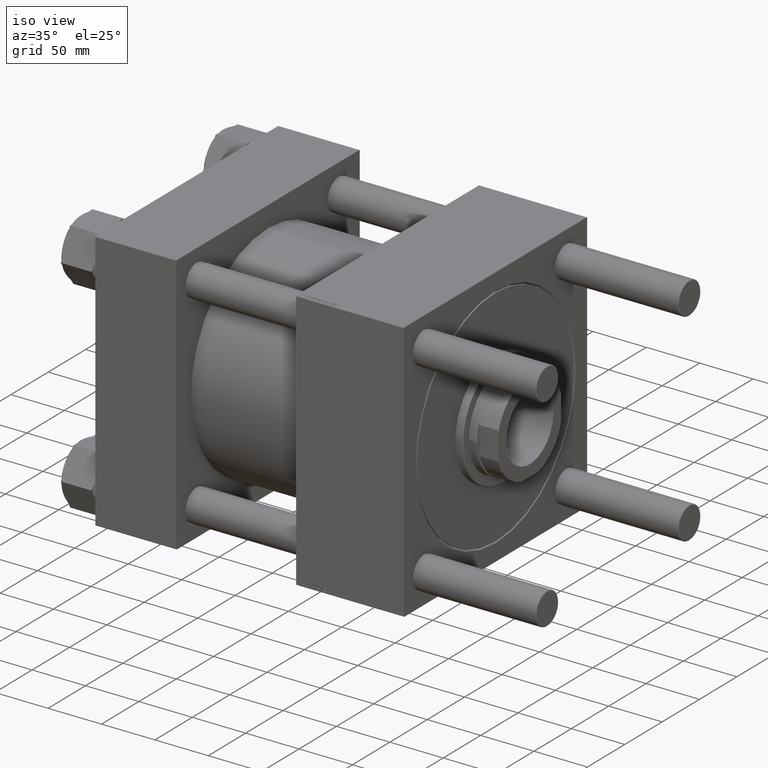
[diagram: clean part render]
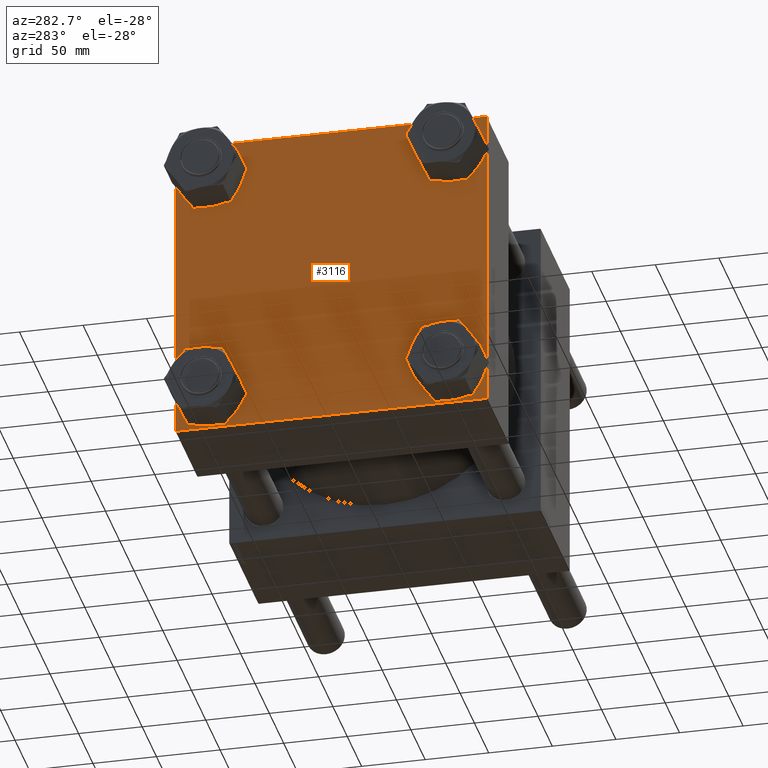
[diagram: tour spotlight — one face highlighted and labeled with its STEP entity id]
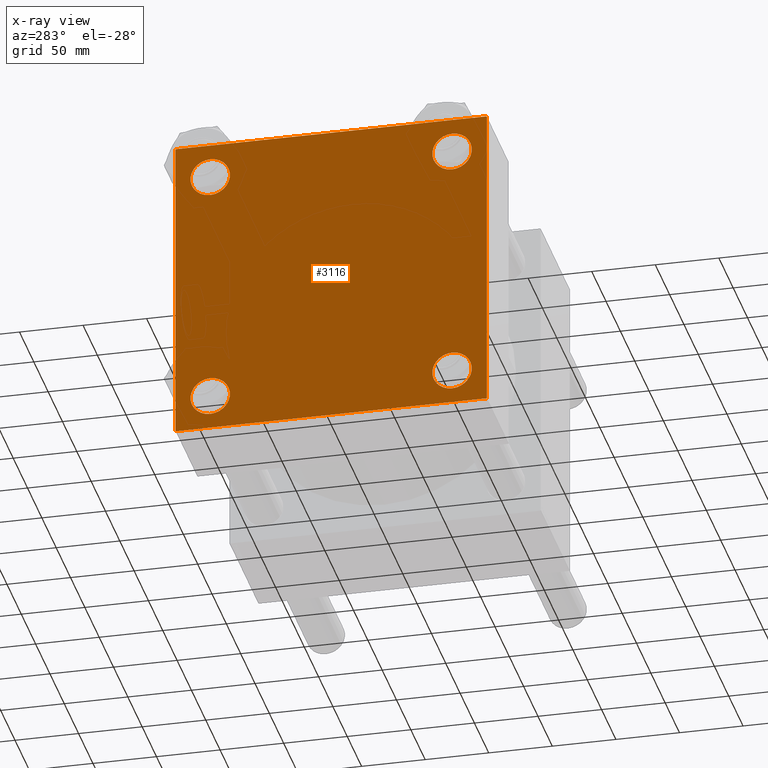
[diagram: x-ray of the same camera — body ghosted, this tour face saturated]
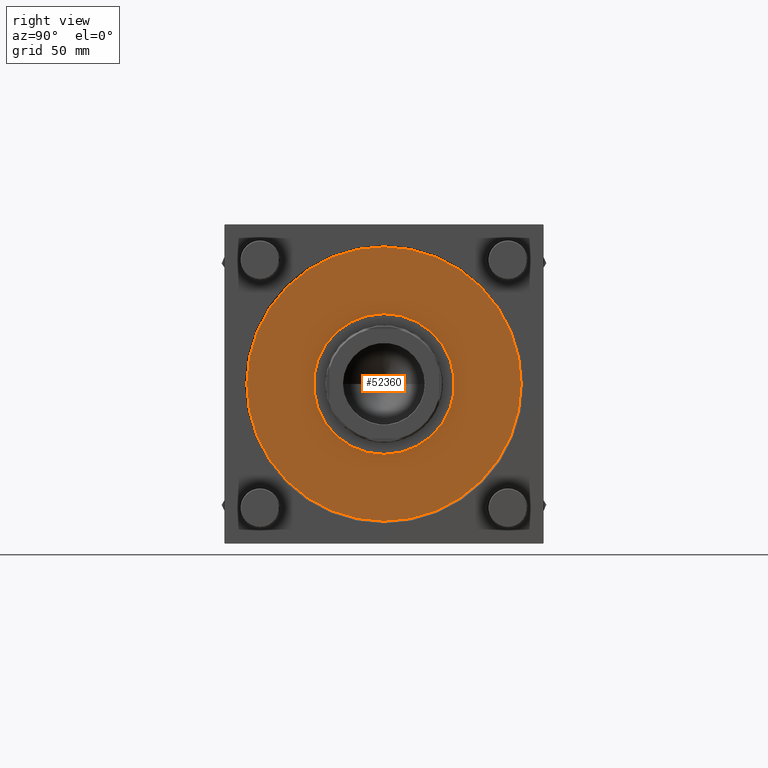
[diagram: tour spotlight — one face highlighted and labeled with its STEP entity id]
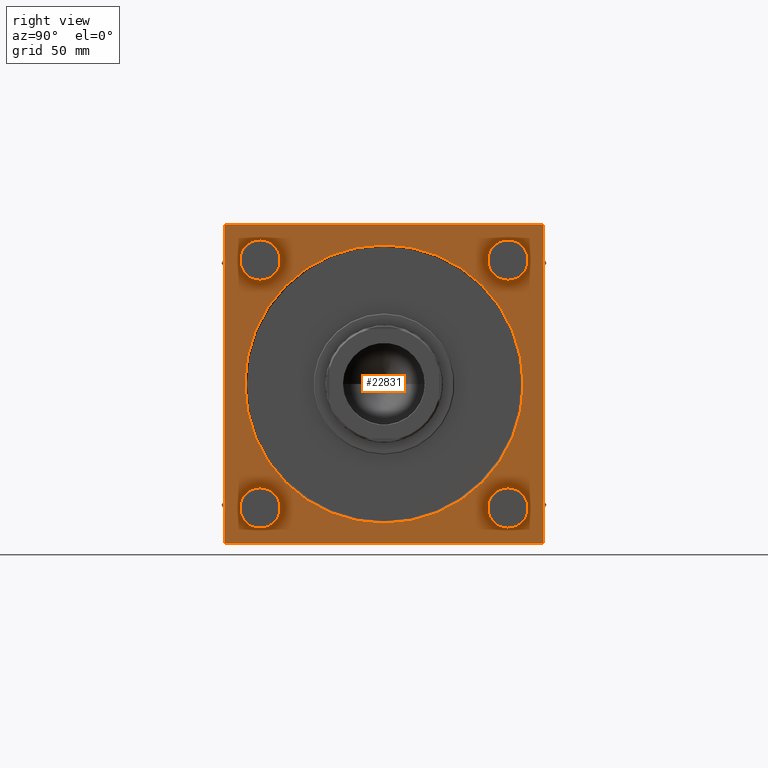
[diagram: tour spotlight — one face highlighted and labeled with its STEP entity id]
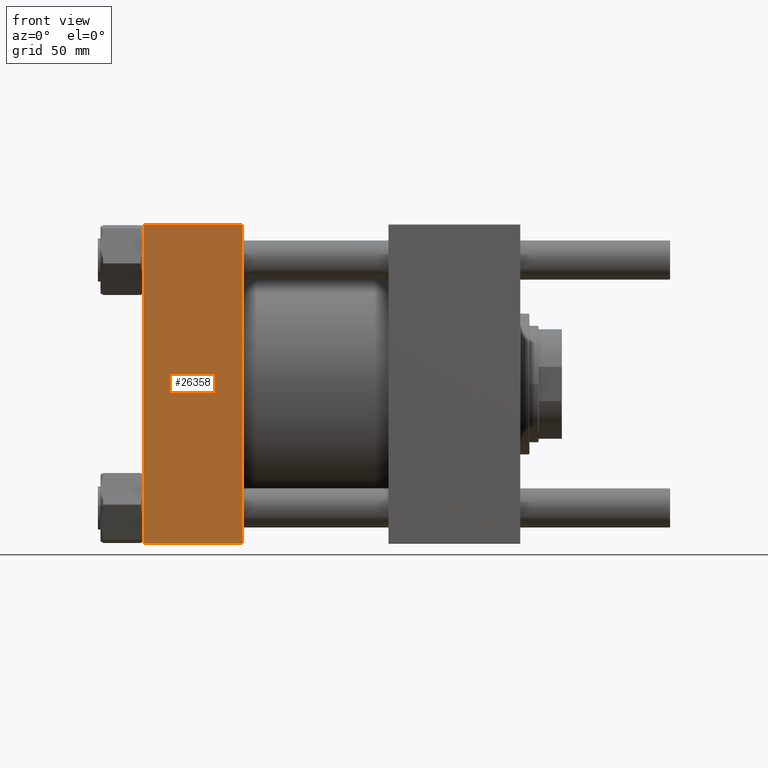
[diagram: tour spotlight — one face highlighted and labeled with its STEP entity id]
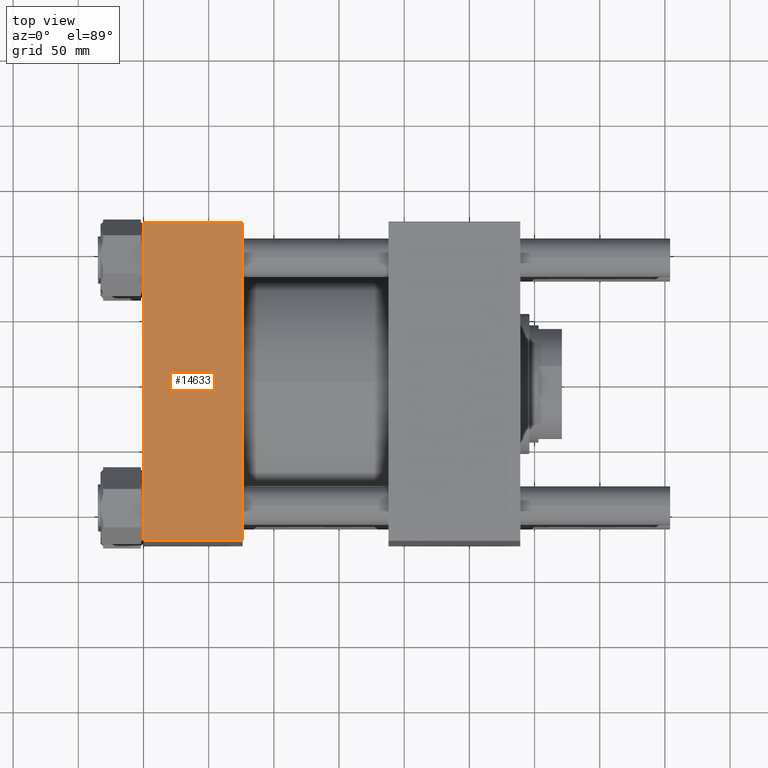
[diagram: tour spotlight — one face highlighted and labeled with its STEP entity id]
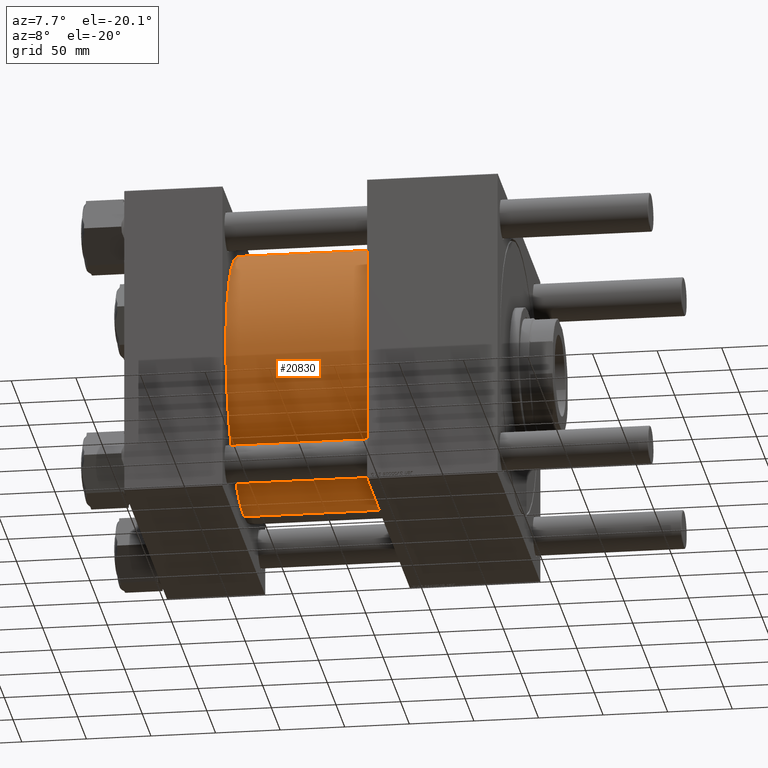
[diagram: tour spotlight — one face highlighted and labeled with its STEP entity id]
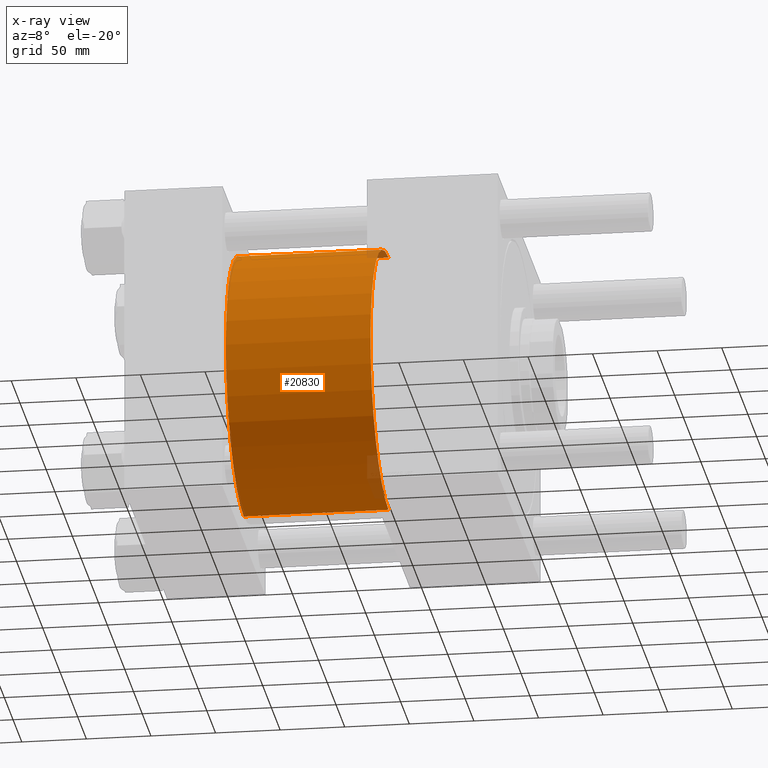
[diagram: x-ray of the same camera — body ghosted, this tour face saturated]
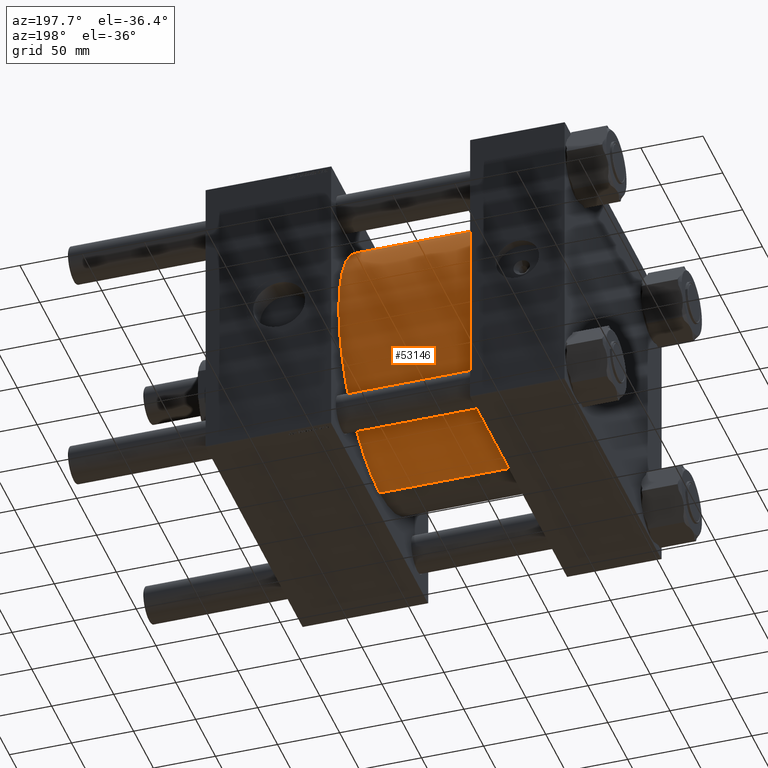
[diagram: tour spotlight — one face highlighted and labeled with its STEP entity id]
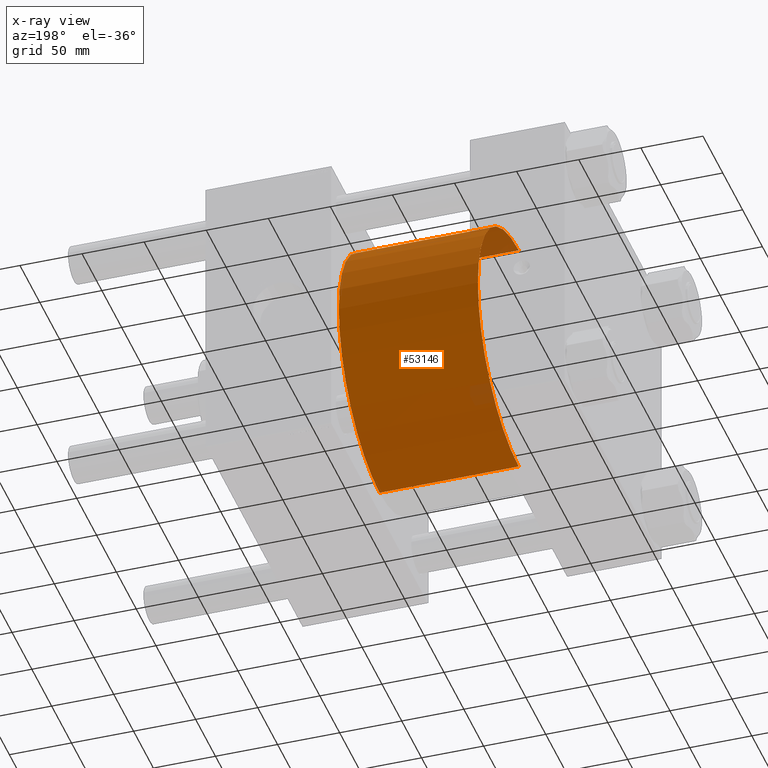
[diagram: x-ray of the same camera — body ghosted, this tour face saturated]
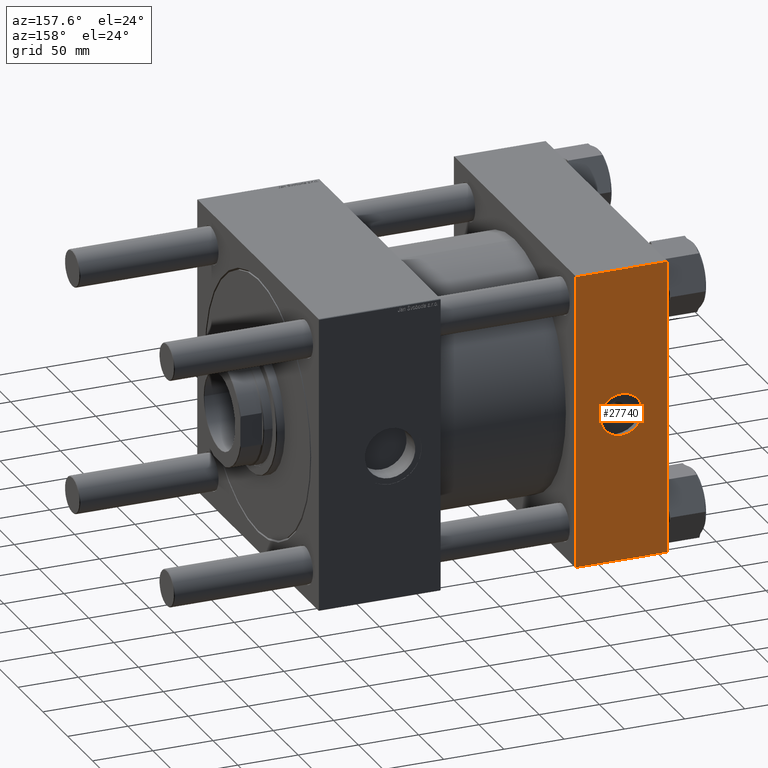
[diagram: tour spotlight — one face highlighted and labeled with its STEP entity id]
A machine part: a face-by-face anatomy tour. The part has 1206 B-rep faces; the first image is the clean iso view, then the 8 largest visible faces are spotlighted one at a time (largest first), each with its STEP entity span.

Face 1 — auxiliary view, entity #3116. An x-ray twin of the same camera follows (body ghosted, this face saturated) — the face is partly hidden behind the body. In plain terms, the highlighted planar face has unit normal (-1, 0, 0).
Definition (entity closure, byte-faithful):
#75 = VERTEX_POINT ( 'NONE', #23210 ) ;
#375 = CIRCLE ( 'NONE', #38235, 15.50000000000001421 ) ;
#733 = VECTOR ( 'NONE', #28117, 1000.000000000000000 ) ;
#829 = CIRCLE ( 'NONE', #8223, 15.50000000000001421 ) ;
#1957 = FACE_BOUND ( 'NONE', #55372, .T. ) ;
#2374 = VECTOR ( 'NONE', #8943, 1000.000000000000114 ) ;
#2509 = DIRECTION ( 'NONE',  ( 0.000000000000000000, 0.000000000000000000, 1.000000000000000000 ) ) ;
#2870 = CARTESIAN_POINT ( 'NONE',  ( 0.000000000000000000, -122.0000000000000000, -122.5000000000000568 ) ) ;
#3116 = ADVANCED_FACE ( 'NONE', ( #50834, #1957, #47047, #33737, #7419 ), #42703, .T. ) ;
#3627 = LINE ( 'NONE', #12302, #3662 ) ;
#3662 = VECTOR ( 'NONE', #38919, 1000.000000000000000 ) ;
#3808 = EDGE_CURVE ( 'NONE', #38776, #45877, #375, .T. ) ;
#4097 = CARTESIAN_POINT ( 'NONE',  ( 0.000000000000000000, 122.5000000000000568, -122.5000000000000000 ) ) ;
#4166 = CARTESIAN_POINT ( 'NONE',  ( 0.000000000000000000, -122.5000000000000000, -122.0000000000000568 ) ) ;
#4776 = VERTEX_POINT ( 'NONE', #47452 ) ;
#5539 = CARTESIAN_POINT ( 'NONE',  ( 0.000000000000000000, -95.09999999999996589, 79.60000000000003695 ) ) ;
#5964 = ORIENTED_EDGE ( 'NONE', *, *, #33771, .T. ) ;
#5991 = DIRECTION ( 'NONE',  ( 1.000000000000000000, -0.000000000000000000, -0.000000000000000000 ) ) ;
#6048 = CARTESIAN_POINT ( 'NONE',  ( 0.000000000000000000, 95.09999999999999432, -95.10000000000002274 ) ) ;
#6251 = ORIENTED_EDGE ( 'NONE', *, *, #33862, .T. ) ;
#6589 = DIRECTION ( 'NONE',  ( 0.000000000000000000, -1.000000000000000000, -1.132880637372608740E-16 ) ) ;
#7419 = FACE_OUTER_BOUND ( 'NONE', #27330, .T. ) ;
#7469 = ORIENTED_EDGE ( 'NONE', *, *, #24902, .T. ) ;
#7818 = DIRECTION ( 'NONE',  ( 1.000000000000000000, -0.000000000000000000, -0.000000000000000000 ) ) ;
#8164 = CARTESIAN_POINT ( 'NONE',  ( 0.000000000000000000, 122.5000000000000568, -121.9999999999999432 ) ) ;
#8223 = AXIS2_PLACEMENT_3D ( 'NONE', #6048, #27466, #23967 ) ;
#8731 = LINE ( 'NONE', #4097, #17733 ) ;
#8943 = DIRECTION ( 'NONE',  ( 0.000000000000000000, -0.7071067811865474617, 0.7071067811865474617 ) ) ;
#9066 = CARTESIAN_POINT ( 'NONE',  ( 0.000000000000000000, 95.09999999999999432, -79.60000000000000853 ) ) ;
#9183 = LINE ( 'NONE', #18113, #44665 ) ;
#9393 = ORIENTED_EDGE ( 'NONE', *, *, #24372, .T. ) ;
#9415 = VERTEX_POINT ( 'NONE', #4166 ) ;
#9513 = LINE ( 'NONE', #31490, #48935 ) ;
#9895 = EDGE_LOOP ( 'NONE', ( #45016, #29724 ) ) ;
#10474 = ORIENTED_EDGE ( 'NONE', *, *, #3808, .T. ) ;
#10983 = AXIS2_PLACEMENT_3D ( 'NONE', #26810, #13514, #35783 ) ;
#12086 = VERTEX_POINT ( 'NONE', #53658 ) ;
#12302 = CARTESIAN_POINT ( 'NONE',  ( 0.000000000000000000, 122.2499999999932641, 122.2500000000068496 ) ) ;
#12530 = EDGE_CURVE ( 'NONE', #46447, #75, #44063, .T. ) ;
#13514 = DIRECTION ( 'NONE',  ( 1.000000000000000000, -0.000000000000000000, -0.000000000000000000 ) ) ;
#13694 = AXIS2_PLACEMENT_3D ( 'NONE', #28540, #5991, #41574 ) ;
#15020 = ORIENTED_EDGE ( 'NONE', *, *, #25285, .F. ) ;
#15431 = CARTESIAN_POINT ( 'NONE',  ( 0.000000000000000000, 95.09999999999999432, 110.6000000000000369 ) ) ;
#16341 = EDGE_LOOP ( 'NONE', ( #9393, #43394 ) ) ;
#16462 = CARTESIAN_POINT ( 'NONE',  ( 0.000000000000000000, -95.09999999999996589, -95.10000000000005116 ) ) ;
#17069 = VERTEX_POINT ( 'NONE', #2870 ) ;
#17095 = EDGE_CURVE ( 'NONE', #45877, #38776, #33120, .T. ) ;
#17252 = AXIS2_PLACEMENT_3D ( 'NONE', #51139, #29438, #38696 ) ;
#17733 = VECTOR ( 'NONE', #26932, 1000.000000000000000 ) ;
#18113 = CARTESIAN_POINT ( 'NONE',  ( 0.000000000000000000, -122.2499999999932641, 122.2500000000068212 ) ) ;
#19307 = DIRECTION ( 'NONE',  ( 0.000000000000000000, -1.132880637372608493E-16, -1.000000000000000000 ) ) ;
#20266 = CARTESIAN_POINT ( 'NONE',  ( 0.000000000000000000, 122.5000000000000568, 122.0000000000000853 ) ) ;
#20679 = CARTESIAN_POINT ( 'NONE',  ( 0.000000000000000000, 0.000000000000000000, 0.000000000000000000 ) ) ;
#20993 = CARTESIAN_POINT ( 'NONE',  ( 0.000000000000000000, -95.09999999999996589, 95.10000000000005116 ) ) ;
#21547 = AXIS2_PLACEMENT_3D ( 'NONE', #52289, #25058, #34619 ) ;
#22152 = DIRECTION ( 'NONE',  ( 0.000000000000000000, 0.000000000000000000, 1.000000000000000000 ) ) ;
#22870 = DIRECTION ( 'NONE',  ( -0.000000000000000000, -0.7071067811865474617, -0.7071067811865474617 ) ) ;
#23210 = CARTESIAN_POINT ( 'NONE',  ( 0.000000000000000000, 95.09999999999999432, 79.60000000000000853 ) ) ;
#23642 = AXIS2_PLACEMENT_3D ( 'NONE', #20993, #39248, #22152 ) ;
#23967 = DIRECTION ( 'NONE',  ( 0.000000000000000000, 0.000000000000000000, 1.000000000000000000 ) ) ;
#24209 = VECTOR ( 'NONE', #22870, 1000.000000000000114 ) ;
#24372 = EDGE_CURVE ( 'NONE', #43238, #4776, #829, .T. ) ;
#24522 = EDGE_CURVE ( 'NONE', #45189, #37273, #37785, .T. ) ;
#24902 = EDGE_CURVE ( 'NONE', #46092, #28754, #3627, .T. ) ;
#25053 = CARTESIAN_POINT ( 'NONE',  ( 0.000000000000000000, 122.5000000000000568, 122.5000000000000284 ) ) ;
#25058 = DIRECTION ( 'NONE',  ( 1.000000000000000000, -0.000000000000000000, -0.000000000000000000 ) ) ;
#25285 = EDGE_CURVE ( 'NONE', #27800, #9415, #9513, .T. ) ;
#25450 = DIRECTION ( 'NONE',  ( 0.000000000000000000, 0.000000000000000000, 1.000000000000000000 ) ) ;
#25614 = EDGE_LOOP ( 'NONE', ( #42616, #52858 ) ) ;
#25646 = CIRCLE ( 'NONE', #13694, 15.50000000000001421 ) ;
#26211 = AXIS2_PLACEMENT_3D ( 'NONE', #20679, #28554, #2509 ) ;
#26810 = CARTESIAN_POINT ( 'NONE',  ( 0.000000000000000000, -95.09999999999996589, 95.10000000000005116 ) ) ;
#26932 = DIRECTION ( 'NONE',  ( 0.000000000000000000, -1.000000000000000000, -2.265761274745216987E-16 ) ) ;
#27330 = EDGE_LOOP ( 'NONE', ( #56259, #5964, #6251, #52507, #15020, #56508, #54500, #7469 ) ) ;
#27466 = DIRECTION ( 'NONE',  ( 1.000000000000000000, -0.000000000000000000, -0.000000000000000000 ) ) ;
#27800 = VERTEX_POINT ( 'NONE', #36823 ) ;
#28117 = DIRECTION ( 'NONE',  ( 0.000000000000000000, 0.000000000000000000, -1.000000000000000000 ) ) ;
#28227 = VECTOR ( 'NONE', #6589, 1000.000000000000000 ) ;
#28540 = CARTESIAN_POINT ( 'NONE',  ( 0.000000000000000000, 95.09999999999999432, -95.10000000000002274 ) ) ;
#28554 = DIRECTION ( 'NONE',  ( -1.000000000000000000, 0.000000000000000000, 0.000000000000000000 ) ) ;
#28754 = VERTEX_POINT ( 'NONE', #20266 ) ;
#29201 = DIRECTION ( 'NONE',  ( 0.000000000000000000, 0.000000000000000000, 1.000000000000000000 ) ) ;
#29438 = DIRECTION ( 'NONE',  ( 1.000000000000000000, -0.000000000000000000, -0.000000000000000000 ) ) ;
#29457 = CARTESIAN_POINT ( 'NONE',  ( 0.000000000000000000, 122.5000000000000568, 122.5000000000000284 ) ) ;
#29724 = ORIENTED_EDGE ( 'NONE', *, *, #37719, .T. ) ;
#29796 = CARTESIAN_POINT ( 'NONE',  ( 0.000000000000000000, -95.09999999999996589, -95.10000000000005116 ) ) ;
#30368 = ORIENTED_EDGE ( 'NONE', *, *, #17095, .T. ) ;
#30913 = LINE ( 'NONE', #31493, #2374 ) ;
#31151 = DIRECTION ( 'NONE',  ( -0.000000000000000000, 0.7071067811865867636, 0.7071067811865082708 ) ) ;
#31490 = CARTESIAN_POINT ( 'NONE',  ( 0.000000000000000000, -122.4999999999999716, 122.5000000000000000 ) ) ;
#31493 = CARTESIAN_POINT ( 'NONE',  ( 0.000000000000000000, -122.2500000000000142, -122.2500000000000142 ) ) ;
#31527 = CARTESIAN_POINT ( 'NONE',  ( 0.000000000000000000, -95.09999999999996589, -110.6000000000000654 ) ) ;
#33120 = CIRCLE ( 'NONE', #54363, 15.50000000000001421 ) ;
#33737 = FACE_BOUND ( 'NONE', #9895, .T. ) ;
#33771 = EDGE_CURVE ( 'NONE', #49176, #12086, #56186, .T. ) ;
#33862 = EDGE_CURVE ( 'NONE', #12086, #17069, #8731, .T. ) ;
#34619 = DIRECTION ( 'NONE',  ( 0.000000000000000000, 0.000000000000000000, 1.000000000000000000 ) ) ;
#35783 = DIRECTION ( 'NONE',  ( 0.000000000000000000, 0.000000000000000000, 1.000000000000000000 ) ) ;
#36449 = CARTESIAN_POINT ( 'NONE',  ( 0.000000000000000000, -95.09999999999996589, 110.6000000000000654 ) ) ;
#36823 = CARTESIAN_POINT ( 'NONE',  ( 0.000000000000000000, -122.4999999999999716, 122.0000000000001137 ) ) ;
#37273 = VERTEX_POINT ( 'NONE', #5539 ) ;
#37719 = EDGE_CURVE ( 'NONE', #75, #46447, #43757, .T. ) ;
#37785 = CIRCLE ( 'NONE', #10983, 15.50000000000001421 ) ;
#38235 = AXIS2_PLACEMENT_3D ( 'NONE', #29796, #7818, #25450 ) ;
#38388 = LINE ( 'NONE', #25053, #28227 ) ;
#38513 = EDGE_CURVE ( 'NONE', #27800, #47666, #9183, .T. ) ;
#38696 = DIRECTION ( 'NONE',  ( 0.000000000000000000, 0.000000000000000000, 1.000000000000000000 ) ) ;
#38776 = VERTEX_POINT ( 'NONE', #45341 ) ;
#38919 = DIRECTION ( 'NONE',  ( 0.000000000000000000, 0.7071067811865868746, -0.7071067811865081598 ) ) ;
#39068 = CARTESIAN_POINT ( 'NONE',  ( 0.000000000000000000, -121.9999999999999716, 122.5000000000000000 ) ) ;
#39248 = DIRECTION ( 'NONE',  ( 1.000000000000000000, -0.000000000000000000, -0.000000000000000000 ) ) ;
#41574 = DIRECTION ( 'NONE',  ( 0.000000000000000000, 0.000000000000000000, 1.000000000000000000 ) ) ;
#42616 = ORIENTED_EDGE ( 'NONE', *, *, #24522, .T. ) ;
#42703 = PLANE ( 'NONE',  #26211 ) ;
#43001 = CIRCLE ( 'NONE', #23642, 15.50000000000001421 ) ;
#43238 = VERTEX_POINT ( 'NONE', #9066 ) ;
#43394 = ORIENTED_EDGE ( 'NONE', *, *, #56294, .T. ) ;
#43757 = CIRCLE ( 'NONE', #21547, 15.50000000000001421 ) ;
#44063 = CIRCLE ( 'NONE', #17252, 15.50000000000001421 ) ;
#44665 = VECTOR ( 'NONE', #31151, 1000.000000000000114 ) ;
#45016 = ORIENTED_EDGE ( 'NONE', *, *, #12530, .T. ) ;
#45189 = VERTEX_POINT ( 'NONE', #36449 ) ;
#45341 = CARTESIAN_POINT ( 'NONE',  ( 0.000000000000000000, -95.09999999999996589, -79.60000000000003695 ) ) ;
#45478 = LINE ( 'NONE', #29457, #733 ) ;
#45877 = VERTEX_POINT ( 'NONE', #31527 ) ;
#46092 = VERTEX_POINT ( 'NONE', #52025 ) ;
#46447 = VERTEX_POINT ( 'NONE', #15431 ) ;
#47047 = FACE_BOUND ( 'NONE', #16341, .T. ) ;
#47211 = CARTESIAN_POINT ( 'NONE',  ( 0.000000000000000000, 122.2500000000000142, -122.2500000000000142 ) ) ;
#47452 = CARTESIAN_POINT ( 'NONE',  ( 0.000000000000000000, 95.09999999999999432, -110.6000000000000369 ) ) ;
#47666 = VERTEX_POINT ( 'NONE', #39068 ) ;
#48935 = VECTOR ( 'NONE', #19307, 1000.000000000000000 ) ;
#49176 = VERTEX_POINT ( 'NONE', #8164 ) ;
#49577 = EDGE_CURVE ( 'NONE', #17069, #9415, #30913, .T. ) ;
#49712 = EDGE_CURVE ( 'NONE', #46092, #47666, #38388, .T. ) ;
#49826 = EDGE_CURVE ( 'NONE', #37273, #45189, #43001, .T. ) ;
#50642 = DIRECTION ( 'NONE',  ( 1.000000000000000000, -0.000000000000000000, -0.000000000000000000 ) ) ;
#50834 = FACE_BOUND ( 'NONE', #25614, .T. ) ;
#51139 = CARTESIAN_POINT ( 'NONE',  ( 0.000000000000000000, 95.09999999999999432, 95.10000000000002274 ) ) ;
#52025 = CARTESIAN_POINT ( 'NONE',  ( 0.000000000000000000, 122.0000000000000568, 122.5000000000000284 ) ) ;
#52289 = CARTESIAN_POINT ( 'NONE',  ( 0.000000000000000000, 95.09999999999999432, 95.10000000000002274 ) ) ;
#52507 = ORIENTED_EDGE ( 'NONE', *, *, #49577, .T. ) ;
#52858 = ORIENTED_EDGE ( 'NONE', *, *, #49826, .T. ) ;
#53658 = CARTESIAN_POINT ( 'NONE',  ( 0.000000000000000000, 122.0000000000000568, -122.5000000000000000 ) ) ;
#54363 = AXIS2_PLACEMENT_3D ( 'NONE', #16462, #50642, #29201 ) ;
#54500 = ORIENTED_EDGE ( 'NONE', *, *, #49712, .F. ) ;
#55372 = EDGE_LOOP ( 'NONE', ( #10474, #30368 ) ) ;
#55989 = EDGE_CURVE ( 'NONE', #28754, #49176, #45478, .T. ) ;
#56186 = LINE ( 'NONE', #47211, #24209 ) ;
#56259 = ORIENTED_EDGE ( 'NONE', *, *, #55989, .T. ) ;
#56294 = EDGE_CURVE ( 'NONE', #4776, #43238, #25646, .T. ) ;
#56508 = ORIENTED_EDGE ( 'NONE', *, *, #38513, .T. ) ;

Face 2 — right view, entity #52360. In plain terms, the highlighted planar face has unit normal (1, 0, 0).
Definition (entity closure, byte-faithful):
#957 = AXIS2_PLACEMENT_3D ( 'NONE', #13546, #39300, #8070 ) ;
#1288 = VERTEX_POINT ( 'NONE', #29093 ) ;
#2248 = CIRCLE ( 'NONE', #20666, 54.00000000000000000 ) ;
#3249 = CARTESIAN_POINT ( 'NONE',  ( 0.000000000000000000, 0.000000000000000000, 28.69999999999999929 ) ) ;
#3823 = VERTEX_POINT ( 'NONE', #34419 ) ;
#5626 = PLANE ( 'NONE',  #55119 ) ;
#8070 = DIRECTION ( 'NONE',  ( 1.000000000000000000, 0.000000000000000000, 0.000000000000000000 ) ) ;
#12611 = CARTESIAN_POINT ( 'NONE',  ( 105.2500000000000000, 1.288940756102589170E-14, 28.69999999999999929 ) ) ;
#13457 = DIRECTION ( 'NONE',  ( 0.000000000000000000, 0.000000000000000000, 1.000000000000000000 ) ) ;
#13546 = CARTESIAN_POINT ( 'NONE',  ( 0.000000000000000000, 0.000000000000000000, 28.69999999999999929 ) ) ;
#13755 = EDGE_CURVE ( 'NONE', #42747, #3823, #51490, .T. ) ;
#14282 = ORIENTED_EDGE ( 'NONE', *, *, #44724, .F. ) ;
#15322 = CARTESIAN_POINT ( 'NONE',  ( -54.00000000000000000, 0.000000000000000000, 28.69999999999999929 ) ) ;
#16559 = DIRECTION ( 'NONE',  ( 1.000000000000000000, 0.000000000000000000, 0.000000000000000000 ) ) ;
#19221 = CIRCLE ( 'NONE', #51568, 54.00000000000000000 ) ;
#20666 = AXIS2_PLACEMENT_3D ( 'NONE', #3249, #39403, #16559 ) ;
#20973 = AXIS2_PLACEMENT_3D ( 'NONE', #21824, #13457, #22389 ) ;
#21824 = CARTESIAN_POINT ( 'NONE',  ( 0.000000000000000000, 0.000000000000000000, 28.69999999999999929 ) ) ;
#22343 = EDGE_CURVE ( 'NONE', #39948, #1288, #19221, .T. ) ;
#22389 = DIRECTION ( 'NONE',  ( 1.000000000000000000, 0.000000000000000000, 0.000000000000000000 ) ) ;
#23249 = CARTESIAN_POINT ( 'NONE',  ( 0.000000000000000000, 0.000000000000000000, 28.69999999999999929 ) ) ;
#24187 = ORIENTED_EDGE ( 'NONE', *, *, #22343, .F. ) ;
#25913 = CIRCLE ( 'NONE', #957, 105.2500000000000000 ) ;
#27121 = ORIENTED_EDGE ( 'NONE', *, *, #28219, .T. ) ;
#28219 = EDGE_CURVE ( 'NONE', #3823, #42747, #25913, .T. ) ;
#29093 = CARTESIAN_POINT ( 'NONE',  ( 54.00000000000000000, 6.613092715395707467E-15, 28.69999999999999929 ) ) ;
#33986 = CARTESIAN_POINT ( 'NONE',  ( 0.000000000000000000, 0.000000000000000000, 28.69999999999999929 ) ) ;
#34419 = CARTESIAN_POINT ( 'NONE',  ( -105.2500000000000000, 0.000000000000000000, 28.69999999999999929 ) ) ;
#34855 = ORIENTED_EDGE ( 'NONE', *, *, #13755, .T. ) ;
#38551 = DIRECTION ( 'NONE',  ( 1.000000000000000000, 0.000000000000000000, -0.000000000000000000 ) ) ;
#39300 = DIRECTION ( 'NONE',  ( 0.000000000000000000, 0.000000000000000000, 1.000000000000000000 ) ) ;
#39403 = DIRECTION ( 'NONE',  ( 0.000000000000000000, 0.000000000000000000, 1.000000000000000000 ) ) ;
#39948 = VERTEX_POINT ( 'NONE', #15322 ) ;
#40629 = FACE_OUTER_BOUND ( 'NONE', #44450, .T. ) ;
#40909 = DIRECTION ( 'NONE',  ( 0.000000000000000000, 0.000000000000000000, 1.000000000000000000 ) ) ;
#42747 = VERTEX_POINT ( 'NONE', #12611 ) ;
#44450 = EDGE_LOOP ( 'NONE', ( #27121, #34855 ) ) ;
#44724 = EDGE_CURVE ( 'NONE', #1288, #39948, #2248, .T. ) ;
#51355 = DIRECTION ( 'NONE',  ( 1.000000000000000000, 0.000000000000000000, 0.000000000000000000 ) ) ;
#51490 = CIRCLE ( 'NONE', #20973, 105.2500000000000000 ) ;
#51568 = AXIS2_PLACEMENT_3D ( 'NONE', #33986, #55136, #51355 ) ;
#52360 = ADVANCED_FACE ( 'NONE', ( #54795, #40629 ), #5626, .T. ) ;
#54430 = EDGE_LOOP ( 'NONE', ( #24187, #14282 ) ) ;
#54795 = FACE_BOUND ( 'NONE', #54430, .T. ) ;
#55119 = AXIS2_PLACEMENT_3D ( 'NONE', #23249, #40909, #38551 ) ;
#55136 = DIRECTION ( 'NONE',  ( 0.000000000000000000, 0.000000000000000000, 1.000000000000000000 ) ) ;

Face 3 — right view, entity #22831. In plain terms, the highlighted planar face has unit normal (-1, 0, 0).
Definition (entity closure, byte-faithful):
#109 = CARTESIAN_POINT ( 'NONE',  ( 289.0000000000000568, 122.5000000000000284, -122.0000000000000142 ) ) ;
#755 = VERTEX_POINT ( 'NONE', #12550 ) ;
#1357 = EDGE_CURVE ( 'NONE', #36882, #30888, #36019, .T. ) ;
#1657 = VERTEX_POINT ( 'NONE', #3557 ) ;
#1864 = AXIS2_PLACEMENT_3D ( 'NONE', #22134, #18082, #53123 ) ;
#2217 = ORIENTED_EDGE ( 'NONE', *, *, #24140, .T. ) ;
#2464 = DIRECTION ( 'NONE',  ( 0.000000000000000000, 0.000000000000000000, 1.000000000000000000 ) ) ;
#2513 = VECTOR ( 'NONE', #25018, 999.9999999999998863 ) ;
#2747 = ORIENTED_EDGE ( 'NONE', *, *, #1357, .T. ) ;
#2890 = CARTESIAN_POINT ( 'NONE',  ( 289.0000000000000568, 95.09999999999999432, 95.10000000000002274 ) ) ;
#3557 = CARTESIAN_POINT ( 'NONE',  ( 289.0000000000000568, -95.09999999999996589, -110.6000000000000654 ) ) ;
#4360 = EDGE_CURVE ( 'NONE', #52868, #32847, #32708, .T. ) ;
#4860 = CIRCLE ( 'NONE', #37201, 15.50000000000001421 ) ;
#5161 = DIRECTION ( 'NONE',  ( -1.000000000000000000, -0.000000000000000000, 0.000000000000000000 ) ) ;
#6316 = FACE_BOUND ( 'NONE', #19590, .T. ) ;
#6476 = ORIENTED_EDGE ( 'NONE', *, *, #25719, .T. ) ;
#6526 = DIRECTION ( 'NONE',  ( -1.000000000000000000, -0.000000000000000000, 0.000000000000000000 ) ) ;
#6582 = CARTESIAN_POINT ( 'NONE',  ( 289.0000000000000568, -122.4999999999999858, 122.5000000000000000 ) ) ;
#6606 = ORIENTED_EDGE ( 'NONE', *, *, #4360, .T. ) ;
#6820 = VERTEX_POINT ( 'NONE', #49198 ) ;
#6863 = DIRECTION ( 'NONE',  ( 0.000000000000000000, -1.132880637372608740E-16, -1.000000000000000000 ) ) ;
#7008 = EDGE_CURVE ( 'NONE', #6820, #15166, #25698, .T. ) ;
#7312 = DIRECTION ( 'NONE',  ( 0.000000000000000000, -1.000000000000000000, 0.000000000000000000 ) ) ;
#7674 = VERTEX_POINT ( 'NONE', #49502 ) ;
#8175 = CARTESIAN_POINT ( 'NONE',  ( 289.0000000000000568, 95.09999999999999432, -95.10000000000002274 ) ) ;
#8503 = CIRCLE ( 'NONE', #47264, 106.7500000000000711 ) ;
#9745 = DIRECTION ( 'NONE',  ( 0.000000000000000000, 0.000000000000000000, 1.000000000000000000 ) ) ;
#9828 = VERTEX_POINT ( 'NONE', #11161 ) ;
#9964 = CARTESIAN_POINT ( 'NONE',  ( 289.0000000000000568, -95.09999999999996589, 79.60000000000003695 ) ) ;
#10183 = DIRECTION ( 'NONE',  ( -1.000000000000000000, -0.000000000000000000, 0.000000000000000000 ) ) ;
#10185 = ORIENTED_EDGE ( 'NONE', *, *, #33048, .T. ) ;
#11161 = CARTESIAN_POINT ( 'NONE',  ( 289.0000000000000568, -95.09999999999996589, 110.6000000000000654 ) ) ;
#11170 = LINE ( 'NONE', #56000, #2513 ) ;
#11250 = CARTESIAN_POINT ( 'NONE',  ( 289.0000000000000568, 95.09999999999999432, 110.6000000000000369 ) ) ;
#11918 = EDGE_CURVE ( 'NONE', #56418, #12344, #27755, .T. ) ;
#12105 = VERTEX_POINT ( 'NONE', #9964 ) ;
#12277 = FACE_BOUND ( 'NONE', #50397, .T. ) ;
#12344 = VERTEX_POINT ( 'NONE', #56704 ) ;
#12550 = CARTESIAN_POINT ( 'NONE',  ( 289.0000000000000568, 122.5000000000000284, 121.9999999999999858 ) ) ;
#12605 = DIRECTION ( 'NONE',  ( -1.000000000000000000, -0.000000000000000000, 0.000000000000000000 ) ) ;
#13148 = DIRECTION ( 'NONE',  ( 0.000000000000000000, 0.000000000000000000, -1.000000000000000000 ) ) ;
#13170 = CARTESIAN_POINT ( 'NONE',  ( 289.0000000000000568, -95.09999999999996589, -95.10000000000005116 ) ) ;
#13554 = EDGE_CURVE ( 'NONE', #15166, #49290, #11170, .T. ) ;
#13629 = CARTESIAN_POINT ( 'NONE',  ( 289.0000000000000568, -122.4999999999999858, 122.0000000000000000 ) ) ;
#13649 = ORIENTED_EDGE ( 'NONE', *, *, #11918, .T. ) ;
#13660 = CARTESIAN_POINT ( 'NONE',  ( 289.0000000000000568, 95.09999999999999432, -95.10000000000002274 ) ) ;
#14670 = DIRECTION ( 'NONE',  ( -1.000000000000000000, -0.000000000000000000, 0.000000000000000000 ) ) ;
#14722 = VERTEX_POINT ( 'NONE', #11250 ) ;
#15083 = DIRECTION ( 'NONE',  ( 0.000000000000000000, 0.000000000000000000, 1.000000000000000000 ) ) ;
#15166 = VERTEX_POINT ( 'NONE', #28833 ) ;
#16447 = CARTESIAN_POINT ( 'NONE',  ( 289.0000000000000568, 122.5000000000000284, 122.5000000000000426 ) ) ;
#16615 = CARTESIAN_POINT ( 'NONE',  ( 289.0000000000000568, 0.000000000000000000, 0.000000000000000000 ) ) ;
#16871 = VECTOR ( 'NONE', #7312, 1000.000000000000000 ) ;
#17066 = ORIENTED_EDGE ( 'NONE', *, *, #13554, .T. ) ;
#17191 = DIRECTION ( 'NONE',  ( -1.000000000000000000, -0.000000000000000000, 0.000000000000000000 ) ) ;
#17330 = EDGE_CURVE ( 'NONE', #49290, #56418, #19579, .T. ) ;
#17413 = LINE ( 'NONE', #35063, #16871 ) ;
#17692 = DIRECTION ( 'NONE',  ( -1.000000000000000000, -0.000000000000000000, 0.000000000000000000 ) ) ;
#17926 = CIRCLE ( 'NONE', #52143, 15.50000000000001421 ) ;
#18082 = DIRECTION ( 'NONE',  ( -1.000000000000000000, -0.000000000000000000, 0.000000000000000000 ) ) ;
#18769 = ORIENTED_EDGE ( 'NONE', *, *, #29163, .T. ) ;
#19012 = DIRECTION ( 'NONE',  ( 0.000000000000000000, 0.000000000000000000, 1.000000000000000000 ) ) ;
#19190 = VERTEX_POINT ( 'NONE', #45080 ) ;
#19256 = VECTOR ( 'NONE', #13148, 1000.000000000000000 ) ;
#19539 = DIRECTION ( 'NONE',  ( 0.000000000000000000, 0.000000000000000000, 1.000000000000000000 ) ) ;
#19579 = LINE ( 'NONE', #6582, #52505 ) ;
#19583 = PLANE ( 'NONE',  #31292 ) ;
#19590 = EDGE_LOOP ( 'NONE', ( #31521, #56267 ) ) ;
#20133 = EDGE_LOOP ( 'NONE', ( #6606, #10185 ) ) ;
#20639 = EDGE_LOOP ( 'NONE', ( #47908, #13649, #22898, #2747, #42041, #48363, #28874, #17066 ) ) ;
#20697 = CARTESIAN_POINT ( 'NONE',  ( 289.0000000000000568, 122.0000000000000284, -122.5000000000000142 ) ) ;
#20862 = CARTESIAN_POINT ( 'NONE',  ( 289.0000000000000568, -95.09999999999996589, 95.10000000000005116 ) ) ;
#22134 = CARTESIAN_POINT ( 'NONE',  ( 289.0000000000000568, -95.09999999999996589, 95.10000000000005116 ) ) ;
#22532 = EDGE_CURVE ( 'NONE', #755, #30888, #25589, .T. ) ;
#22831 = ADVANCED_FACE ( 'NONE', ( #12277, #38610, #28294, #6316, #56262, #30209 ), #19583, .F. ) ;
#22898 = ORIENTED_EDGE ( 'NONE', *, *, #34891, .F. ) ;
#23360 = CARTESIAN_POINT ( 'NONE',  ( 289.0000000000000568, -95.09999999999996589, -95.10000000000005116 ) ) ;
#23469 = DIRECTION ( 'NONE',  ( 0.000000000000000000, 0.000000000000000000, 1.000000000000000000 ) ) ;
#23934 = AXIS2_PLACEMENT_3D ( 'NONE', #2890, #56419, #25143 ) ;
#24140 = EDGE_CURVE ( 'NONE', #14722, #26719, #24833, .T. ) ;
#24579 = ORIENTED_EDGE ( 'NONE', *, *, #35828, .T. ) ;
#24833 = CIRCLE ( 'NONE', #23934, 15.50000000000001421 ) ;
#25018 = DIRECTION ( 'NONE',  ( -0.000000000000000000, -0.7071067811865574537, -0.7071067811865376918 ) ) ;
#25143 = DIRECTION ( 'NONE',  ( 0.000000000000000000, 0.000000000000000000, 1.000000000000000000 ) ) ;
#25589 = LINE ( 'NONE', #47587, #19256 ) ;
#25698 = LINE ( 'NONE', #16447, #53167 ) ;
#25719 = EDGE_CURVE ( 'NONE', #1657, #7674, #47056, .T. ) ;
#26089 = DIRECTION ( 'NONE',  ( 0.000000000000000000, 0.000000000000000000, 1.000000000000000000 ) ) ;
#26461 = CARTESIAN_POINT ( 'NONE',  ( 289.0000000000000568, 122.5000000000000284, -122.0000000000000142 ) ) ;
#26719 = VERTEX_POINT ( 'NONE', #46690 ) ;
#27109 = VERTEX_POINT ( 'NONE', #33816 ) ;
#27538 = EDGE_CURVE ( 'NONE', #9828, #12105, #47105, .T. ) ;
#27755 = LINE ( 'NONE', #36151, #51403 ) ;
#28294 = FACE_BOUND ( 'NONE', #43249, .T. ) ;
#28833 = CARTESIAN_POINT ( 'NONE',  ( 289.0000000000000568, -121.9999999999999716, 122.5000000000000000 ) ) ;
#28874 = ORIENTED_EDGE ( 'NONE', *, *, #7008, .T. ) ;
#29163 = EDGE_CURVE ( 'NONE', #7674, #1657, #37002, .T. ) ;
#29386 = CARTESIAN_POINT ( 'NONE',  ( 289.0000000000000568, -122.5000000000000142, -121.9999999999999432 ) ) ;
#30209 = FACE_OUTER_BOUND ( 'NONE', #20639, .T. ) ;
#30525 = DIRECTION ( 'NONE',  ( 0.000000000000000000, 0.000000000000000000, 1.000000000000000000 ) ) ;
#30888 = VERTEX_POINT ( 'NONE', #109 ) ;
#31292 = AXIS2_PLACEMENT_3D ( 'NONE', #16615, #17191, #50293 ) ;
#31521 = ORIENTED_EDGE ( 'NONE', *, *, #44658, .T. ) ;
#31971 = EDGE_CURVE ( 'NONE', #755, #6820, #33343, .T. ) ;
#32102 = CARTESIAN_POINT ( 'NONE',  ( 289.0000000000000568, 0.000000000000000000, -106.7500000000000711 ) ) ;
#32123 = CIRCLE ( 'NONE', #47802, 15.50000000000001421 ) ;
#32708 = CIRCLE ( 'NONE', #53049, 106.7500000000000711 ) ;
#32847 = VERTEX_POINT ( 'NONE', #47590 ) ;
#33048 = EDGE_CURVE ( 'NONE', #32847, #52868, #8503, .T. ) ;
#33187 = AXIS2_PLACEMENT_3D ( 'NONE', #13170, #12605, #30525 ) ;
#33343 = LINE ( 'NONE', #33617, #46381 ) ;
#33617 = CARTESIAN_POINT ( 'NONE',  ( 289.0000000000000568, 121.9999999999999716, 122.5000000000000426 ) ) ;
#33816 = CARTESIAN_POINT ( 'NONE',  ( 289.0000000000000568, 95.09999999999999432, -110.6000000000000369 ) ) ;
#34741 = AXIS2_PLACEMENT_3D ( 'NONE', #8175, #6526, #2464 ) ;
#34891 = EDGE_CURVE ( 'NONE', #36882, #12344, #17413, .T. ) ;
#35063 = CARTESIAN_POINT ( 'NONE',  ( 289.0000000000000568, 122.5000000000000284, -122.5000000000000142 ) ) ;
#35719 = DIRECTION ( 'NONE',  ( -0.000000000000000000, 0.7071067811865474617, 0.7071067811865474617 ) ) ;
#35828 = EDGE_CURVE ( 'NONE', #19190, #27109, #4860, .T. ) ;
#36019 = LINE ( 'NONE', #26461, #49417 ) ;
#36074 = ORIENTED_EDGE ( 'NONE', *, *, #54773, .T. ) ;
#36151 = CARTESIAN_POINT ( 'NONE',  ( 289.0000000000000568, -121.9999999999999432, -122.5000000000000142 ) ) ;
#36882 = VERTEX_POINT ( 'NONE', #20697 ) ;
#37002 = CIRCLE ( 'NONE', #49019, 15.50000000000001421 ) ;
#37201 = AXIS2_PLACEMENT_3D ( 'NONE', #13660, #49543, #23469 ) ;
#38610 = FACE_BOUND ( 'NONE', #57194, .T. ) ;
#41272 = CARTESIAN_POINT ( 'NONE',  ( 289.0000000000000568, 0.000000000000000000, 0.000000000000000000 ) ) ;
#41423 = CARTESIAN_POINT ( 'NONE',  ( 289.0000000000000568, 0.000000000000000000, 0.000000000000000000 ) ) ;
#42041 = ORIENTED_EDGE ( 'NONE', *, *, #22532, .F. ) ;
#43249 = EDGE_LOOP ( 'NONE', ( #36074, #2217 ) ) ;
#44445 = CARTESIAN_POINT ( 'NONE',  ( 289.0000000000000568, 95.09999999999999432, 95.10000000000002274 ) ) ;
#44658 = EDGE_CURVE ( 'NONE', #12105, #9828, #17926, .T. ) ;
#45080 = CARTESIAN_POINT ( 'NONE',  ( 289.0000000000000568, 95.09999999999999432, -79.60000000000000853 ) ) ;
#46381 = VECTOR ( 'NONE', #51279, 1000.000000000000114 ) ;
#46690 = CARTESIAN_POINT ( 'NONE',  ( 289.0000000000000568, 95.09999999999999432, 79.60000000000000853 ) ) ;
#46765 = CIRCLE ( 'NONE', #34741, 15.50000000000001421 ) ;
#47056 = CIRCLE ( 'NONE', #33187, 15.50000000000001421 ) ;
#47105 = CIRCLE ( 'NONE', #1864, 15.50000000000001421 ) ;
#47264 = AXIS2_PLACEMENT_3D ( 'NONE', #41423, #10183, #15083 ) ;
#47587 = CARTESIAN_POINT ( 'NONE',  ( 289.0000000000000568, 122.5000000000000284, 122.5000000000000426 ) ) ;
#47590 = CARTESIAN_POINT ( 'NONE',  ( 289.0000000000000568, 1.307310458089800389E-14, 106.7500000000000711 ) ) ;
#47802 = AXIS2_PLACEMENT_3D ( 'NONE', #44445, #52863, #9745 ) ;
#47908 = ORIENTED_EDGE ( 'NONE', *, *, #17330, .T. ) ;
#48363 = ORIENTED_EDGE ( 'NONE', *, *, #31971, .T. ) ;
#49019 = AXIS2_PLACEMENT_3D ( 'NONE', #23360, #5161, #19012 ) ;
#49198 = CARTESIAN_POINT ( 'NONE',  ( 289.0000000000000568, 121.9999999999999716, 122.5000000000000426 ) ) ;
#49290 = VERTEX_POINT ( 'NONE', #13629 ) ;
#49417 = VECTOR ( 'NONE', #35719, 1000.000000000000114 ) ;
#49464 = DIRECTION ( 'NONE',  ( 0.000000000000000000, 0.7071067811865474617, -0.7071067811865474617 ) ) ;
#49502 = CARTESIAN_POINT ( 'NONE',  ( 289.0000000000000568, -95.09999999999996589, -79.60000000000003695 ) ) ;
#49543 = DIRECTION ( 'NONE',  ( -1.000000000000000000, -0.000000000000000000, 0.000000000000000000 ) ) ;
#50020 = EDGE_CURVE ( 'NONE', #27109, #19190, #46765, .T. ) ;
#50293 = DIRECTION ( 'NONE',  ( 0.000000000000000000, 0.000000000000000000, 1.000000000000000000 ) ) ;
#50397 = EDGE_LOOP ( 'NONE', ( #6476, #18769 ) ) ;
#50605 = ORIENTED_EDGE ( 'NONE', *, *, #50020, .T. ) ;
#51279 = DIRECTION ( 'NONE',  ( 0.000000000000000000, -0.7071067811865474617, 0.7071067811865474617 ) ) ;
#51403 = VECTOR ( 'NONE', #49464, 1000.000000000000114 ) ;
#51755 = DIRECTION ( 'NONE',  ( 0.000000000000000000, -1.000000000000000000, -1.699320956058913233E-16 ) ) ;
#52143 = AXIS2_PLACEMENT_3D ( 'NONE', #20862, #17692, #26089 ) ;
#52505 = VECTOR ( 'NONE', #6863, 1000.000000000000000 ) ;
#52863 = DIRECTION ( 'NONE',  ( -1.000000000000000000, -0.000000000000000000, 0.000000000000000000 ) ) ;
#52868 = VERTEX_POINT ( 'NONE', #32102 ) ;
#53049 = AXIS2_PLACEMENT_3D ( 'NONE', #41272, #14670, #19539 ) ;
#53123 = DIRECTION ( 'NONE',  ( 0.000000000000000000, 0.000000000000000000, 1.000000000000000000 ) ) ;
#53167 = VECTOR ( 'NONE', #51755, 1000.000000000000000 ) ;
#54773 = EDGE_CURVE ( 'NONE', #26719, #14722, #32123, .T. ) ;
#56000 = CARTESIAN_POINT ( 'NONE',  ( 289.0000000000000568, -122.4999999999999858, 122.0000000000000000 ) ) ;
#56262 = FACE_BOUND ( 'NONE', #20133, .T. ) ;
#56267 = ORIENTED_EDGE ( 'NONE', *, *, #27538, .T. ) ;
#56418 = VERTEX_POINT ( 'NONE', #29386 ) ;
#56419 = DIRECTION ( 'NONE',  ( -1.000000000000000000, -0.000000000000000000, 0.000000000000000000 ) ) ;
#56704 = CARTESIAN_POINT ( 'NONE',  ( 289.0000000000000568, -121.9999999999999432, -122.5000000000000142 ) ) ;
#57194 = EDGE_LOOP ( 'NONE', ( #50605, #24579 ) ) ;

Face 4 — front view, entity #26358. In plain terms, the highlighted planar face has unit normal (0, 1, -0).
Definition (entity closure, byte-faithful):
#585 = CARTESIAN_POINT ( 'NONE',  ( 76.00000000000000000, -122.4999999999999716, 122.0000000000001137 ) ) ;
#716 = ORIENTED_EDGE ( 'NONE', *, *, #36751, .F. ) ;
#4166 = CARTESIAN_POINT ( 'NONE',  ( 0.000000000000000000, -122.5000000000000000, -122.0000000000000568 ) ) ;
#5331 = CARTESIAN_POINT ( 'NONE',  ( 76.00000000000000000, -122.5000000000000000, -122.0000000000000568 ) ) ;
#5864 = VECTOR ( 'NONE', #54071, 1000.000000000000000 ) ;
#8985 = DIRECTION ( 'NONE',  ( 0.000000000000000000, 1.000000000000000000, -1.132880637372608493E-16 ) ) ;
#9415 = VERTEX_POINT ( 'NONE', #4166 ) ;
#9513 = LINE ( 'NONE', #31490, #48935 ) ;
#9970 = LINE ( 'NONE', #5331, #51391 ) ;
#10092 = LINE ( 'NONE', #10646, #5864 ) ;
#10646 = CARTESIAN_POINT ( 'NONE',  ( 76.00000000000000000, -122.4999999999999716, 122.5000000000000000 ) ) ;
#11159 = EDGE_LOOP ( 'NONE', ( #17496, #23231, #716, #39399 ) ) ;
#12852 = CARTESIAN_POINT ( 'NONE',  ( 76.00000000000000000, -122.4999999999999716, 122.0000000000001137 ) ) ;
#13318 = CARTESIAN_POINT ( 'NONE',  ( 76.00000000000000000, -122.4999999999999716, 122.5000000000000000 ) ) ;
#14505 = VERTEX_POINT ( 'NONE', #585 ) ;
#17495 = AXIS2_PLACEMENT_3D ( 'NONE', #13318, #8985, #26614 ) ;
#17496 = ORIENTED_EDGE ( 'NONE', *, *, #25285, .T. ) ;
#19307 = DIRECTION ( 'NONE',  ( 0.000000000000000000, -1.132880637372608493E-16, -1.000000000000000000 ) ) ;
#23231 = ORIENTED_EDGE ( 'NONE', *, *, #51050, .T. ) ;
#25285 = EDGE_CURVE ( 'NONE', #27800, #9415, #9513, .T. ) ;
#26327 = PLANE ( 'NONE',  #17495 ) ;
#26358 = ADVANCED_FACE ( 'NONE', ( #48332 ), #26327, .F. ) ;
#26614 = DIRECTION ( 'NONE',  ( 0.000000000000000000, 1.132880637372608493E-16, 1.000000000000000000 ) ) ;
#27800 = VERTEX_POINT ( 'NONE', #36823 ) ;
#30486 = DIRECTION ( 'NONE',  ( -1.000000000000000000, 0.000000000000000000, 0.000000000000000000 ) ) ;
#31490 = CARTESIAN_POINT ( 'NONE',  ( 0.000000000000000000, -122.4999999999999716, 122.5000000000000000 ) ) ;
#31703 = VECTOR ( 'NONE', #30486, 1000.000000000000000 ) ;
#36034 = EDGE_CURVE ( 'NONE', #14505, #27800, #47859, .T. ) ;
#36751 = EDGE_CURVE ( 'NONE', #14505, #46856, #10092, .T. ) ;
#36823 = CARTESIAN_POINT ( 'NONE',  ( 0.000000000000000000, -122.4999999999999716, 122.0000000000001137 ) ) ;
#37575 = CARTESIAN_POINT ( 'NONE',  ( 76.00000000000000000, -122.5000000000000000, -122.0000000000000568 ) ) ;
#39399 = ORIENTED_EDGE ( 'NONE', *, *, #36034, .T. ) ;
#45260 = DIRECTION ( 'NONE',  ( 1.000000000000000000, 0.000000000000000000, 0.000000000000000000 ) ) ;
#46856 = VERTEX_POINT ( 'NONE', #37575 ) ;
#47859 = LINE ( 'NONE', #12852, #31703 ) ;
#48332 = FACE_OUTER_BOUND ( 'NONE', #11159, .T. ) ;
#48935 = VECTOR ( 'NONE', #19307, 1000.000000000000000 ) ;
#51050 = EDGE_CURVE ( 'NONE', #9415, #46856, #9970, .T. ) ;
#51391 = VECTOR ( 'NONE', #45260, 1000.000000000000000 ) ;
#54071 = DIRECTION ( 'NONE',  ( 0.000000000000000000, -1.132880637372608493E-16, -1.000000000000000000 ) ) ;

Face 5 — top view, entity #14633. In plain terms, the highlighted planar face has unit normal (0, 0, -1).
Definition (entity closure, byte-faithful):
#2969 = CARTESIAN_POINT ( 'NONE',  ( 76.00000000000000000, 122.0000000000000568, 122.5000000000000284 ) ) ;
#6359 = DIRECTION ( 'NONE',  ( 0.000000000000000000, 1.132880637372608740E-16, -1.000000000000000000 ) ) ;
#6589 = DIRECTION ( 'NONE',  ( 0.000000000000000000, -1.000000000000000000, -1.132880637372608740E-16 ) ) ;
#10964 = ORIENTED_EDGE ( 'NONE', *, *, #23997, .T. ) ;
#11313 = ORIENTED_EDGE ( 'NONE', *, *, #27201, .T. ) ;
#14633 = ADVANCED_FACE ( 'NONE', ( #29182 ), #24825, .F. ) ;
#16534 = VECTOR ( 'NONE', #34557, 1000.000000000000000 ) ;
#16912 = CARTESIAN_POINT ( 'NONE',  ( 76.00000000000000000, -122.0000000000000284, 122.5000000000000000 ) ) ;
#18331 = LINE ( 'NONE', #28102, #40517 ) ;
#18893 = EDGE_LOOP ( 'NONE', ( #24366, #10964, #32325, #11313 ) ) ;
#21227 = LINE ( 'NONE', #16912, #16534 ) ;
#22741 = EDGE_CURVE ( 'NONE', #35617, #37769, #18331, .T. ) ;
#23997 = EDGE_CURVE ( 'NONE', #47666, #37769, #21227, .T. ) ;
#24366 = ORIENTED_EDGE ( 'NONE', *, *, #49712, .T. ) ;
#24825 = PLANE ( 'NONE',  #40385 ) ;
#25053 = CARTESIAN_POINT ( 'NONE',  ( 0.000000000000000000, 122.5000000000000568, 122.5000000000000284 ) ) ;
#27201 = EDGE_CURVE ( 'NONE', #35617, #46092, #56097, .T. ) ;
#28102 = CARTESIAN_POINT ( 'NONE',  ( 76.00000000000000000, 122.5000000000000568, 122.5000000000000284 ) ) ;
#28227 = VECTOR ( 'NONE', #6589, 1000.000000000000000 ) ;
#29182 = FACE_OUTER_BOUND ( 'NONE', #18893, .T. ) ;
#32325 = ORIENTED_EDGE ( 'NONE', *, *, #22741, .F. ) ;
#33525 = CARTESIAN_POINT ( 'NONE',  ( 0.000000000000000000, 122.0000000000000568, 122.5000000000000284 ) ) ;
#34557 = DIRECTION ( 'NONE',  ( 1.000000000000000000, 0.000000000000000000, 0.000000000000000000 ) ) ;
#35617 = VERTEX_POINT ( 'NONE', #2969 ) ;
#37311 = DIRECTION ( 'NONE',  ( 0.000000000000000000, 1.000000000000000000, 1.132880637372608740E-16 ) ) ;
#37769 = VERTEX_POINT ( 'NONE', #51708 ) ;
#38388 = LINE ( 'NONE', #25053, #28227 ) ;
#39068 = CARTESIAN_POINT ( 'NONE',  ( 0.000000000000000000, -121.9999999999999716, 122.5000000000000000 ) ) ;
#40385 = AXIS2_PLACEMENT_3D ( 'NONE', #46265, #6359, #37311 ) ;
#40517 = VECTOR ( 'NONE', #53372, 1000.000000000000000 ) ;
#42502 = DIRECTION ( 'NONE',  ( -1.000000000000000000, 0.000000000000000000, 0.000000000000000000 ) ) ;
#46092 = VERTEX_POINT ( 'NONE', #52025 ) ;
#46202 = VECTOR ( 'NONE', #42502, 1000.000000000000000 ) ;
#46265 = CARTESIAN_POINT ( 'NONE',  ( 76.00000000000000000, 122.5000000000000568, 122.5000000000000284 ) ) ;
#47666 = VERTEX_POINT ( 'NONE', #39068 ) ;
#49712 = EDGE_CURVE ( 'NONE', #46092, #47666, #38388, .T. ) ;
#51708 = CARTESIAN_POINT ( 'NONE',  ( 76.00000000000000000, -121.9999999999999716, 122.5000000000000000 ) ) ;
#52025 = CARTESIAN_POINT ( 'NONE',  ( 0.000000000000000000, 122.0000000000000568, 122.5000000000000284 ) ) ;
#53372 = DIRECTION ( 'NONE',  ( 0.000000000000000000, -1.000000000000000000, -1.132880637372608740E-16 ) ) ;
#56097 = LINE ( 'NONE', #33525, #46202 ) ;

Face 6 — auxiliary view, entity #20830. An x-ray twin of the same camera follows (body ghosted, this face saturated) — the face is partly hidden behind the body. In plain terms, the highlighted cylindrical surface (partial cylindrical patch) has radius 103 mm, axis along (-1, -0, -0).
Definition (entity closure, byte-faithful):
#611 = FACE_OUTER_BOUND ( 'NONE', #26758, .T. ) ;
#4089 = DIRECTION ( 'NONE',  ( 0.000000000000000000, 0.000000000000000000, 1.000000000000000000 ) ) ;
#4416 = EDGE_CURVE ( 'NONE', #12276, #5957, #19261, .T. ) ;
#5235 = ORIENTED_EDGE ( 'NONE', *, *, #12338, .T. ) ;
#5957 = VERTEX_POINT ( 'NONE', #50965 ) ;
#6209 = AXIS2_PLACEMENT_3D ( 'NONE', #21654, #52370, #39043 ) ;
#9209 = VERTEX_POINT ( 'NONE', #42652 ) ;
#12276 = VERTEX_POINT ( 'NONE', #20220 ) ;
#12338 = EDGE_CURVE ( 'NONE', #5957, #49020, #32059, .T. ) ;
#13507 = DIRECTION ( 'NONE',  ( 1.000000000000000000, 0.000000000000000000, 0.000000000000000000 ) ) ;
#19261 = LINE ( 'NONE', #36940, #46571 ) ;
#20220 = CARTESIAN_POINT ( 'NONE',  ( 188.0000000000000000, -2.602085213965210642E-15, 103.0000000000000000 ) ) ;
#20830 = ADVANCED_FACE ( 'NONE', ( #611 ), #21418, .T. ) ;
#21418 = CYLINDRICAL_SURFACE ( 'NONE', #29481, 103.0000000000000000 ) ;
#21654 = CARTESIAN_POINT ( 'NONE',  ( 76.00000000000000000, -2.602085213965210642E-15, 0.000000000000000000 ) ) ;
#22279 = CARTESIAN_POINT ( 'NONE',  ( 188.0000000000000000, -2.602085213965210642E-15, 0.000000000000000000 ) ) ;
#23337 = ORIENTED_EDGE ( 'NONE', *, *, #54621, .F. ) ;
#25611 = VECTOR ( 'NONE', #41619, 1000.000000000000000 ) ;
#25860 = CARTESIAN_POINT ( 'NONE',  ( 76.00000000000000000, 1.001177681725252697E-14, -103.0000000000000000 ) ) ;
#26758 = EDGE_LOOP ( 'NONE', ( #23337, #39271, #29743, #5235 ) ) ;
#29481 = AXIS2_PLACEMENT_3D ( 'NONE', #22279, #52422, #4089 ) ;
#29743 = ORIENTED_EDGE ( 'NONE', *, *, #4416, .T. ) ;
#31435 = CARTESIAN_POINT ( 'NONE',  ( 188.0000000000000000, -2.602085213965210642E-15, 0.000000000000000000 ) ) ;
#32059 = CIRCLE ( 'NONE', #6209, 103.0000000000000000 ) ;
#32647 = EDGE_CURVE ( 'NONE', #12276, #9209, #55610, .T. ) ;
#36359 = DIRECTION ( 'NONE',  ( 0.000000000000000000, 0.000000000000000000, -1.000000000000000000 ) ) ;
#36367 = DIRECTION ( 'NONE',  ( -1.000000000000000000, -0.000000000000000000, -0.000000000000000000 ) ) ;
#36940 = CARTESIAN_POINT ( 'NONE',  ( 188.0000000000000000, -2.602085213965210642E-15, 103.0000000000000000 ) ) ;
#39043 = DIRECTION ( 'NONE',  ( 0.000000000000000000, 0.000000000000000000, 1.000000000000000000 ) ) ;
#39271 = ORIENTED_EDGE ( 'NONE', *, *, #32647, .F. ) ;
#41619 = DIRECTION ( 'NONE',  ( -1.000000000000000000, -0.000000000000000000, -0.000000000000000000 ) ) ;
#42172 = CARTESIAN_POINT ( 'NONE',  ( 188.0000000000000000, 1.001177681725252697E-14, -103.0000000000000000 ) ) ;
#42642 = AXIS2_PLACEMENT_3D ( 'NONE', #31435, #13507, #36359 ) ;
#42652 = CARTESIAN_POINT ( 'NONE',  ( 188.0000000000000000, 1.001177681725252697E-14, -103.0000000000000000 ) ) ;
#46571 = VECTOR ( 'NONE', #36367, 1000.000000000000000 ) ;
#49020 = VERTEX_POINT ( 'NONE', #25860 ) ;
#50965 = CARTESIAN_POINT ( 'NONE',  ( 76.00000000000000000, -2.602085213965210642E-15, 103.0000000000000000 ) ) ;
#52370 = DIRECTION ( 'NONE',  ( 1.000000000000000000, -0.000000000000000000, -0.000000000000000000 ) ) ;
#52422 = DIRECTION ( 'NONE',  ( -1.000000000000000000, -0.000000000000000000, -0.000000000000000000 ) ) ;
#54621 = EDGE_CURVE ( 'NONE', #9209, #49020, #55203, .T. ) ;
#55203 = LINE ( 'NONE', #42172, #25611 ) ;
#55610 = CIRCLE ( 'NONE', #42642, 103.0000000000000000 ) ;

Face 7 — auxiliary view, entity #53146. An x-ray twin of the same camera follows (body ghosted, this face saturated) — the face is partly hidden behind the body. In plain terms, the highlighted cylindrical surface (partial cylindrical patch) has radius 103 mm, axis along (-1, -0, -0).
Definition (entity closure, byte-faithful):
#2555 = CARTESIAN_POINT ( 'NONE',  ( 188.0000000000000000, -2.602085213965210642E-15, 0.000000000000000000 ) ) ;
#3541 = ORIENTED_EDGE ( 'NONE', *, *, #4416, .F. ) ;
#4416 = EDGE_CURVE ( 'NONE', #12276, #5957, #19261, .T. ) ;
#5041 = DIRECTION ( 'NONE',  ( 0.000000000000000000, 0.000000000000000000, 1.000000000000000000 ) ) ;
#5885 = ORIENTED_EDGE ( 'NONE', *, *, #15619, .F. ) ;
#5957 = VERTEX_POINT ( 'NONE', #50965 ) ;
#7464 = FACE_OUTER_BOUND ( 'NONE', #36909, .T. ) ;
#8031 = AXIS2_PLACEMENT_3D ( 'NONE', #2555, #32663, #54945 ) ;
#9209 = VERTEX_POINT ( 'NONE', #42652 ) ;
#12276 = VERTEX_POINT ( 'NONE', #20220 ) ;
#14586 = CIRCLE ( 'NONE', #21018, 103.0000000000000000 ) ;
#15619 = EDGE_CURVE ( 'NONE', #9209, #12276, #14586, .T. ) ;
#19261 = LINE ( 'NONE', #36940, #46571 ) ;
#20220 = CARTESIAN_POINT ( 'NONE',  ( 188.0000000000000000, -2.602085213965210642E-15, 103.0000000000000000 ) ) ;
#21018 = AXIS2_PLACEMENT_3D ( 'NONE', #47551, #28766, #46418 ) ;
#22691 = EDGE_CURVE ( 'NONE', #49020, #5957, #50679, .T. ) ;
#24809 = ORIENTED_EDGE ( 'NONE', *, *, #54621, .T. ) ;
#25082 = CYLINDRICAL_SURFACE ( 'NONE', #8031, 103.0000000000000000 ) ;
#25611 = VECTOR ( 'NONE', #41619, 1000.000000000000000 ) ;
#25860 = CARTESIAN_POINT ( 'NONE',  ( 76.00000000000000000, 1.001177681725252697E-14, -103.0000000000000000 ) ) ;
#27020 = CARTESIAN_POINT ( 'NONE',  ( 76.00000000000000000, -2.602085213965210642E-15, 0.000000000000000000 ) ) ;
#27997 = ORIENTED_EDGE ( 'NONE', *, *, #22691, .T. ) ;
#28766 = DIRECTION ( 'NONE',  ( 1.000000000000000000, 0.000000000000000000, 0.000000000000000000 ) ) ;
#32663 = DIRECTION ( 'NONE',  ( -1.000000000000000000, -0.000000000000000000, -0.000000000000000000 ) ) ;
#36367 = DIRECTION ( 'NONE',  ( -1.000000000000000000, -0.000000000000000000, -0.000000000000000000 ) ) ;
#36909 = EDGE_LOOP ( 'NONE', ( #5885, #24809, #27997, #3541 ) ) ;
#36940 = CARTESIAN_POINT ( 'NONE',  ( 188.0000000000000000, -2.602085213965210642E-15, 103.0000000000000000 ) ) ;
#41619 = DIRECTION ( 'NONE',  ( -1.000000000000000000, -0.000000000000000000, -0.000000000000000000 ) ) ;
#42172 = CARTESIAN_POINT ( 'NONE',  ( 188.0000000000000000, 1.001177681725252697E-14, -103.0000000000000000 ) ) ;
#42652 = CARTESIAN_POINT ( 'NONE',  ( 188.0000000000000000, 1.001177681725252697E-14, -103.0000000000000000 ) ) ;
#46418 = DIRECTION ( 'NONE',  ( 0.000000000000000000, 0.000000000000000000, -1.000000000000000000 ) ) ;
#46571 = VECTOR ( 'NONE', #36367, 1000.000000000000000 ) ;
#47551 = CARTESIAN_POINT ( 'NONE',  ( 188.0000000000000000, -2.602085213965210642E-15, 0.000000000000000000 ) ) ;
#49020 = VERTEX_POINT ( 'NONE', #25860 ) ;
#50107 = DIRECTION ( 'NONE',  ( 1.000000000000000000, -0.000000000000000000, -0.000000000000000000 ) ) ;
#50679 = CIRCLE ( 'NONE', #56244, 103.0000000000000000 ) ;
#50965 = CARTESIAN_POINT ( 'NONE',  ( 76.00000000000000000, -2.602085213965210642E-15, 103.0000000000000000 ) ) ;
#53146 = ADVANCED_FACE ( 'NONE', ( #7464 ), #25082, .T. ) ;
#54621 = EDGE_CURVE ( 'NONE', #9209, #49020, #55203, .T. ) ;
#54945 = DIRECTION ( 'NONE',  ( 0.000000000000000000, 0.000000000000000000, 1.000000000000000000 ) ) ;
#55203 = LINE ( 'NONE', #42172, #25611 ) ;
#56244 = AXIS2_PLACEMENT_3D ( 'NONE', #27020, #50107, #5041 ) ;

Face 8 — auxiliary view, entity #27740. In plain terms, the highlighted planar face has unit normal (0, 1, 0).
Definition (entity closure, byte-faithful):
#733 = VECTOR ( 'NONE', #28117, 1000.000000000000000 ) ;
#876 = CIRCLE ( 'NONE', #47993, 17.50000000000000000 ) ;
#937 = DIRECTION ( 'NONE',  ( -0.000000000000000000, 1.000000000000000000, 0.000000000000000000 ) ) ;
#4490 = CARTESIAN_POINT ( 'NONE',  ( 38.00000000000000000, 122.5000000000000568, 0.000000000000000000 ) ) ;
#5134 = ORIENTED_EDGE ( 'NONE', *, *, #55989, .F. ) ;
#8143 = CIRCLE ( 'NONE', #27670, 17.50000000000000000 ) ;
#8164 = CARTESIAN_POINT ( 'NONE',  ( 0.000000000000000000, 122.5000000000000568, -121.9999999999999432 ) ) ;
#8886 = DIRECTION ( 'NONE',  ( 1.000000000000000000, 0.000000000000000000, 0.000000000000000000 ) ) ;
#10212 = VECTOR ( 'NONE', #24275, 1000.000000000000000 ) ;
#10553 = DIRECTION ( 'NONE',  ( -1.000000000000000000, 0.000000000000000000, 0.000000000000000000 ) ) ;
#11392 = CARTESIAN_POINT ( 'NONE',  ( 76.00000000000000000, 122.5000000000000568, -122.0000000000000000 ) ) ;
#12649 = LINE ( 'NONE', #53155, #24563 ) ;
#13998 = CARTESIAN_POINT ( 'NONE',  ( 38.00000000000000000, 122.5000000000000568, 0.000000000000000000 ) ) ;
#15679 = VECTOR ( 'NONE', #10553, 1000.000000000000000 ) ;
#15921 = VERTEX_POINT ( 'NONE', #53264 ) ;
#16603 = EDGE_LOOP ( 'NONE', ( #38262, #46364 ) ) ;
#20266 = CARTESIAN_POINT ( 'NONE',  ( 0.000000000000000000, 122.5000000000000568, 122.0000000000000853 ) ) ;
#21315 = EDGE_CURVE ( 'NONE', #48545, #29862, #8143, .T. ) ;
#24275 = DIRECTION ( 'NONE',  ( 0.000000000000000000, 0.000000000000000000, -1.000000000000000000 ) ) ;
#24563 = VECTOR ( 'NONE', #8886, 1000.000000000000000 ) ;
#24744 = VERTEX_POINT ( 'NONE', #32869 ) ;
#25820 = EDGE_CURVE ( 'NONE', #29862, #48545, #876, .T. ) ;
#26408 = CARTESIAN_POINT ( 'NONE',  ( 38.00000000000000000, 122.5000000000000568, 17.50000000000000000 ) ) ;
#26629 = EDGE_CURVE ( 'NONE', #24744, #49176, #33379, .T. ) ;
#27670 = AXIS2_PLACEMENT_3D ( 'NONE', #13998, #49016, #30772 ) ;
#27740 = ADVANCED_FACE ( 'NONE', ( #49546, #31592 ), #35941, .T. ) ;
#28117 = DIRECTION ( 'NONE',  ( 0.000000000000000000, 0.000000000000000000, -1.000000000000000000 ) ) ;
#28754 = VERTEX_POINT ( 'NONE', #20266 ) ;
#28900 = EDGE_CURVE ( 'NONE', #15921, #24744, #36477, .T. ) ;
#29075 = ORIENTED_EDGE ( 'NONE', *, *, #50597, .T. ) ;
#29457 = CARTESIAN_POINT ( 'NONE',  ( 0.000000000000000000, 122.5000000000000568, 122.5000000000000284 ) ) ;
#29862 = VERTEX_POINT ( 'NONE', #52915 ) ;
#30772 = DIRECTION ( 'NONE',  ( 0.000000000000000000, 0.000000000000000000, 1.000000000000000000 ) ) ;
#31592 = FACE_OUTER_BOUND ( 'NONE', #35503, .T. ) ;
#32869 = CARTESIAN_POINT ( 'NONE',  ( 76.00000000000000000, 122.5000000000000568, -121.9999999999999432 ) ) ;
#33379 = LINE ( 'NONE', #11392, #15679 ) ;
#33619 = ORIENTED_EDGE ( 'NONE', *, *, #28900, .T. ) ;
#35503 = EDGE_LOOP ( 'NONE', ( #33619, #54217, #5134, #29075 ) ) ;
#35941 = PLANE ( 'NONE',  #36968 ) ;
#36477 = LINE ( 'NONE', #50072, #10212 ) ;
#36968 = AXIS2_PLACEMENT_3D ( 'NONE', #57077, #937, #49252 ) ;
#38262 = ORIENTED_EDGE ( 'NONE', *, *, #21315, .F. ) ;
#44981 = DIRECTION ( 'NONE',  ( 0.000000000000000000, 0.000000000000000000, 1.000000000000000000 ) ) ;
#45478 = LINE ( 'NONE', #29457, #733 ) ;
#46364 = ORIENTED_EDGE ( 'NONE', *, *, #25820, .F. ) ;
#47993 = AXIS2_PLACEMENT_3D ( 'NONE', #4490, #49628, #44981 ) ;
#48545 = VERTEX_POINT ( 'NONE', #26408 ) ;
#49016 = DIRECTION ( 'NONE',  ( 0.000000000000000000, 1.000000000000000000, 0.000000000000000000 ) ) ;
#49176 = VERTEX_POINT ( 'NONE', #8164 ) ;
#49252 = DIRECTION ( 'NONE',  ( 0.000000000000000000, -0.000000000000000000, 1.000000000000000000 ) ) ;
#49546 = FACE_BOUND ( 'NONE', #16603, .T. ) ;
#49628 = DIRECTION ( 'NONE',  ( 0.000000000000000000, 1.000000000000000000, 0.000000000000000000 ) ) ;
#50072 = CARTESIAN_POINT ( 'NONE',  ( 76.00000000000000000, 122.5000000000000568, 122.5000000000000284 ) ) ;
#50597 = EDGE_CURVE ( 'NONE', #28754, #15921, #12649, .T. ) ;
#52915 = CARTESIAN_POINT ( 'NONE',  ( 38.00000000000000000, 122.5000000000000568, -17.50000000000000000 ) ) ;
#53155 = CARTESIAN_POINT ( 'NONE',  ( 76.00000000000000000, 122.5000000000000568, 122.0000000000000853 ) ) ;
#53264 = CARTESIAN_POINT ( 'NONE',  ( 76.00000000000000000, 122.5000000000000568, 122.0000000000000853 ) ) ;
#54217 = ORIENTED_EDGE ( 'NONE', *, *, #26629, .T. ) ;
#55989 = EDGE_CURVE ( 'NONE', #28754, #49176, #45478, .T. ) ;
#57077 = CARTESIAN_POINT ( 'NONE',  ( 76.00000000000000000, 122.5000000000000568, 122.5000000000000284 ) ) ;